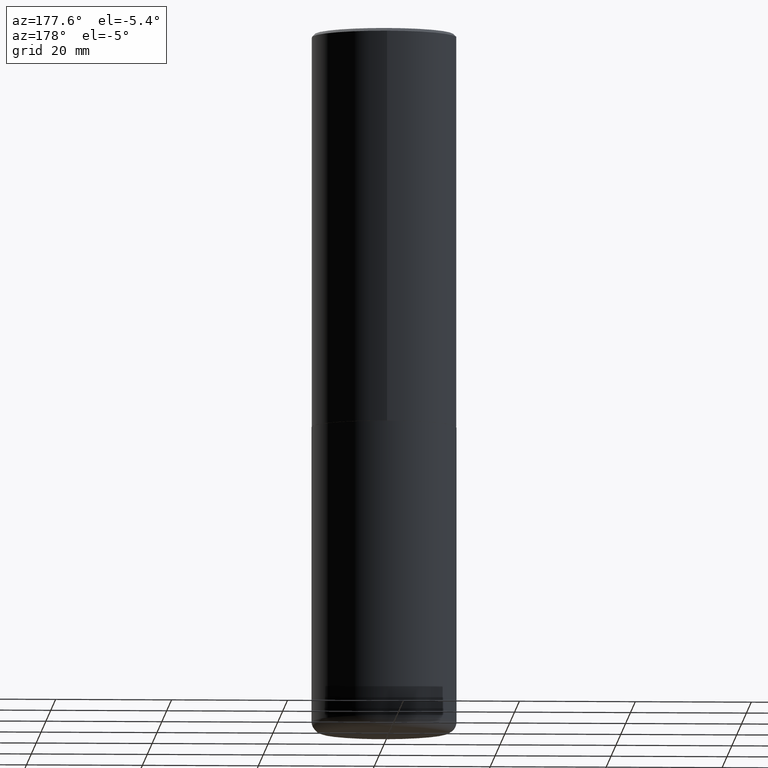
[diagram: clean part render]
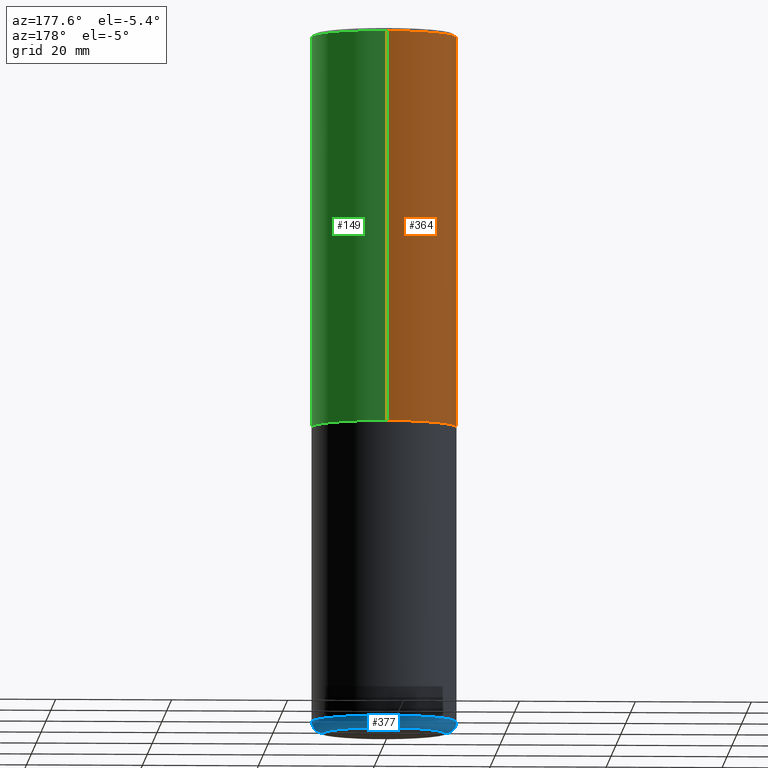
[diagram: same view with three faces highlighted in distinct colors, each labeled with its STEP entity id]
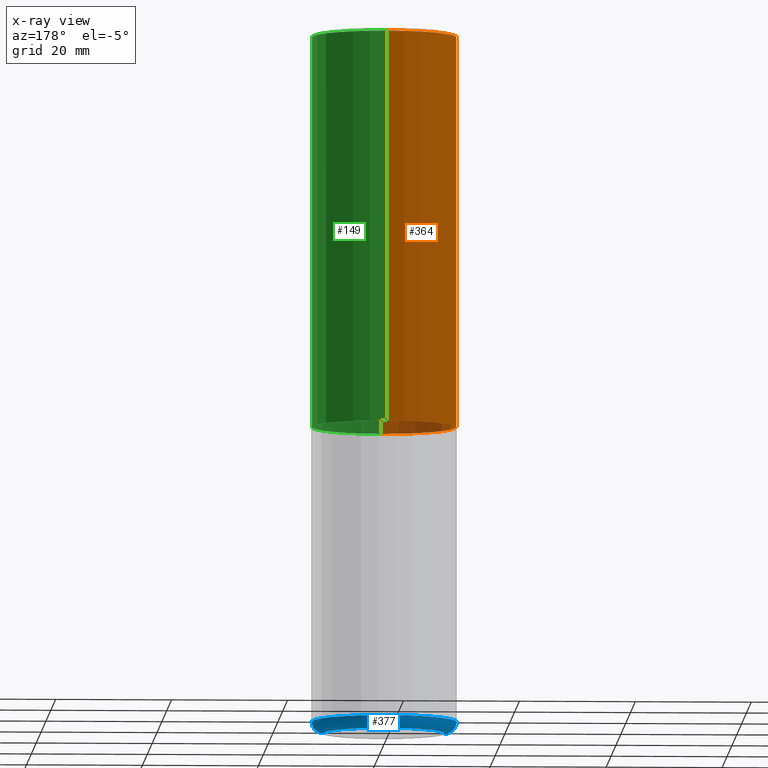
[diagram: x-ray of the same camera — body ghosted, the three highlighted faces saturated]
A machine part, auxiliary view with three faces highlighted in distinct colors.
The next image is the same camera in x-ray (body ghosted, the three faces saturated) — at least one of them is partly hidden behind the body in this view.
Their STEP definitions:

[orange] entity #364 — the highlighted cylindrical surface (partial cylindrical patch) has radius 12.5006 mm, axis along (-0, 0, 1).
#25 = DIRECTION ( 'NONE',  ( -2.447117958567619178E-29, 3.489119658767506053E-15, 1.000000000000000000 ) ) ;
#26 = DIRECTION ( 'NONE',  ( -2.447117958567619178E-29, 3.489119658767506053E-15, 1.000000000000000000 ) ) ;
#30 = CARTESIAN_POINT ( 'NONE',  ( 6.548977080718662055E-29, -9.337582030793598206E-15, -2.676199999999999690 ) ) ;
#33 = EDGE_CURVE ( 'NONE', #38, #322, #199, .T. ) ;
#38 = VERTEX_POINT ( 'NONE', #400 ) ;
#48 = ORIENTED_EDGE ( 'NONE', *, *, #285, .T. ) ;
#52 = CARTESIAN_POINT ( 'NONE',  ( -3.436665081823232273E-15, -0.4921500000000095798, -2.676199999999997914 ) ) ;
#57 = VECTOR ( 'NONE', #25, 39.37007874015748143 ) ;
#60 = EDGE_CURVE ( 'NONE', #173, #322, #270, .T. ) ;
#65 = LINE ( 'NONE', #412, #92 ) ;
#92 = VECTOR ( 'NONE', #99, 39.37007874015748143 ) ;
#99 = DIRECTION ( 'NONE',  ( -2.447117958567619178E-29, 3.489119658767506053E-15, 1.000000000000000000 ) ) ;
#145 = CARTESIAN_POINT ( 'NONE',  ( 4.894235917135264524E-31, -6.978239317535049922E-17, -0.02000000000000010797 ) ) ;
#151 = AXIS2_PLACEMENT_3D ( 'NONE', #145, #311, #341 ) ;
#159 = FACE_OUTER_BOUND ( 'NONE', #172, .T. ) ;
#172 = EDGE_LOOP ( 'NONE', ( #235, #48, #195, #386 ) ) ;
#173 = VERTEX_POINT ( 'NONE', #52 ) ;
#189 = CARTESIAN_POINT ( 'NONE',  ( 3.496936074043367212E-15, 0.4921499999999909281, -2.676200000000001467 ) ) ;
#195 = ORIENTED_EDGE ( 'NONE', *, *, #60, .T. ) ;
#199 = CIRCLE ( 'NONE', #151, 0.4921499999999999209 ) ;
#220 = CARTESIAN_POINT ( 'NONE',  ( -3.376394089603257868E-15, -0.4921499999999999764, -0.01999999999999839059 ) ) ;
#224 = DIRECTION ( 'NONE',  ( -2.447117958567619178E-29, 3.489119658767506053E-15, 1.000000000000000000 ) ) ;
#235 = ORIENTED_EDGE ( 'NONE', *, *, #288, .F. ) ;
#257 = CARTESIAN_POINT ( 'NONE',  ( 0.000000000000000000, 0.000000000000000000, 0.000000000000000000 ) ) ;
#270 = LINE ( 'NONE', #398, #57 ) ;
#281 = DIRECTION ( 'NONE',  ( -6.982962677686266711E-15, -1.000000000000000000, 3.330506545156064285E-15 ) ) ;
#285 = EDGE_CURVE ( 'NONE', #352, #173, #387, .T. ) ;
#288 = EDGE_CURVE ( 'NONE', #352, #38, #65, .T. ) ;
#311 = DIRECTION ( 'NONE',  ( -2.447117958567619178E-29, 3.489119658767506053E-15, 1.000000000000000000 ) ) ;
#322 = VERTEX_POINT ( 'NONE', #220 ) ;
#341 = DIRECTION ( 'NONE',  ( -6.982962677686265922E-15, -1.000000000000000000, 3.486624039460257331E-15 ) ) ;
#348 = DIRECTION ( 'NONE',  ( -6.982962677686265922E-15, -1.000000000000000000, 3.489119658767506053E-15 ) ) ;
#352 = VERTEX_POINT ( 'NONE', #189 ) ;
#360 = AXIS2_PLACEMENT_3D ( 'NONE', #257, #224, #348 ) ;
#364 = ADVANCED_FACE ( 'NONE', ( #159 ), #416, .T. ) ;
#386 = ORIENTED_EDGE ( 'NONE', *, *, #33, .F. ) ;
#387 = CIRCLE ( 'NONE', #410, 0.4921500000000002539 ) ;
#398 = CARTESIAN_POINT ( 'NONE',  ( -3.436665081823296565E-15, -0.4921500000000000874, 1.717170240062428491E-15 ) ) ;
#400 = CARTESIAN_POINT ( 'NONE',  ( 3.436665081823295777E-15, 0.4921499999999998098, -0.02000000000000182188 ) ) ;
#410 = AXIS2_PLACEMENT_3D ( 'NONE', #30, #26, #281 ) ;
#412 = CARTESIAN_POINT ( 'NONE',  ( 3.496936074043333291E-15, 0.4921500000000000874, -1.717170240062428491E-15 ) ) ;
#416 = CYLINDRICAL_SURFACE ( 'NONE', #360, 0.4921500000000000874 ) ;

[blue] entity #377 — the highlighted toroidal blend (fillet) surface has major radius 10.5016 mm and minor (blend) radius 1.999 mm.
#1 = DIRECTION ( 'NONE',  ( 1.000000000000000000, -6.982962677686263555E-15, 4.883557194083111219E-29 ) ) ;
#18 = DIRECTION ( 'NONE',  ( 1.000000000000000000, -6.982962677686265922E-15, 0.000000000000000000 ) ) ;
#20 = EDGE_CURVE ( 'NONE', #324, #267, #77, .T. ) ;
#24 = AXIS2_PLACEMENT_3D ( 'NONE', #128, #163, #1 ) ;
#31 = DIRECTION ( 'NONE',  ( -6.982962677686266711E-15, -1.000000000000000000, 3.491481338843145583E-15 ) ) ;
#58 = CARTESIAN_POINT ( 'NONE',  ( 1.164972429890475522E-28, -1.663271880198097847E-14, -4.763799999999999812 ) ) ;
#62 = DIRECTION ( 'NONE',  ( -1.000000000000000000, 7.105427357600995548E-15, 0.000000000000000000 ) ) ;
#63 = AXIS2_PLACEMENT_3D ( 'NONE', #58, #363, #125 ) ;
#67 = CARTESIAN_POINT ( 'NONE',  ( -0.4921500000000000874, -1.286100314657068829E-14, -4.685099999999999376 ) ) ;
#73 = ORIENTED_EDGE ( 'NONE', *, *, #20, .F. ) ;
#75 = ORIENTED_EDGE ( 'NONE', *, *, #211, .T. ) ;
#77 = CIRCLE ( 'NONE', #182, 0.4921499999999999764 ) ;
#113 = AXIS2_PLACEMENT_3D ( 'NONE', #316, #31, #157 ) ;
#122 = DIRECTION ( 'NONE',  ( 7.105427357601001859E-15, 1.000000000000000000, -3.491481338843145583E-15 ) ) ;
#125 = DIRECTION ( 'NONE',  ( 1.000000000000000000, -6.982962677686261977E-15, 0.000000000000000000 ) ) ;
#128 = CARTESIAN_POINT ( 'NONE',  ( 1.145726590385798145E-28, -1.635793922061402197E-14, -4.685099999999999376 ) ) ;
#157 = DIRECTION ( 'NONE',  ( 1.000000000000000000, -6.982962677686273810E-15, 0.000000000000000000 ) ) ;
#163 = DIRECTION ( 'NONE',  ( -2.445468806185136597E-29, 3.491481338843145583E-15, 1.000000000000000000 ) ) ;
#171 = ORIENTED_EDGE ( 'NONE', *, *, #219, .T. ) ;
#182 = AXIS2_PLACEMENT_3D ( 'NONE', #306, #205, #18 ) ;
#188 = CARTESIAN_POINT ( 'NONE',  ( -0.4134499999999999287, -1.327799150377576435E-14, -4.763799999999999812 ) ) ;
#205 = DIRECTION ( 'NONE',  ( -2.445468806185136597E-29, 3.491481338843145583E-15, 1.000000000000000000 ) ) ;
#211 = EDGE_CURVE ( 'NONE', #320, #326, #351, .T. ) ;
#219 = EDGE_CURVE ( 'NONE', #326, #267, #339, .T. ) ;
#265 = FACE_OUTER_BOUND ( 'NONE', #350, .T. ) ;
#267 = VERTEX_POINT ( 'NONE', #67 ) ;
#269 = TOROIDAL_SURFACE ( 'NONE', #24, 0.4134499999999999287, 0.07870000000000024198 ) ;
#294 = ORIENTED_EDGE ( 'NONE', *, *, #328, .F. ) ;
#306 = CARTESIAN_POINT ( 'NONE',  ( 1.145726590385798145E-28, -1.635793922061402197E-14, -4.685099999999999376 ) ) ;
#316 = CARTESIAN_POINT ( 'NONE',  ( 0.4134499999999999287, -1.924504513970340634E-14, -4.685099999999999376 ) ) ;
#318 = AXIS2_PLACEMENT_3D ( 'NONE', #373, #122, #62 ) ;
#320 = VERTEX_POINT ( 'NONE', #414 ) ;
#324 = VERTEX_POINT ( 'NONE', #343 ) ;
#326 = VERTEX_POINT ( 'NONE', #188 ) ;
#328 = EDGE_CURVE ( 'NONE', #320, #324, #411, .T. ) ;
#339 = CIRCLE ( 'NONE', #318, 0.07870000000000024198 ) ;
#343 = CARTESIAN_POINT ( 'NONE',  ( 0.4921500000000000874, -1.979460430243731302E-14, -4.685099999999999376 ) ) ;
#350 = EDGE_LOOP ( 'NONE', ( #75, #171, #73, #294 ) ) ;
#351 = CIRCLE ( 'NONE', #63, 0.4134499999999999287 ) ;
#363 = DIRECTION ( 'NONE',  ( -2.445468806185136597E-29, 3.491481338843145583E-15, 1.000000000000000000 ) ) ;
#373 = CARTESIAN_POINT ( 'NONE',  ( -0.4134499999999999287, -1.342020027961388708E-14, -4.685099999999999376 ) ) ;
#377 = ADVANCED_FACE ( 'NONE', ( #265 ), #269, .T. ) ;
#411 = CIRCLE ( 'NONE', #113, 0.07870000000000024198 ) ;
#414 = CARTESIAN_POINT ( 'NONE',  ( 0.4134499999999999287, -1.951982472107036283E-14, -4.763799999999999812 ) ) ;

[green] entity #149 — the highlighted cylindrical surface (partial cylindrical patch) has radius 12.5006 mm, axis along (-0, 0, 1).
#3 = ORIENTED_EDGE ( 'NONE', *, *, #375, .F. ) ;
#5 = CIRCLE ( 'NONE', #245, 0.4921499999999999209 ) ;
#25 = DIRECTION ( 'NONE',  ( -2.447117958567619178E-29, 3.489119658767506053E-15, 1.000000000000000000 ) ) ;
#29 = AXIS2_PLACEMENT_3D ( 'NONE', #124, #98, #253 ) ;
#38 = VERTEX_POINT ( 'NONE', #400 ) ;
#52 = CARTESIAN_POINT ( 'NONE',  ( -3.436665081823232273E-15, -0.4921500000000095798, -2.676199999999997914 ) ) ;
#57 = VECTOR ( 'NONE', #25, 39.37007874015748143 ) ;
#60 = EDGE_CURVE ( 'NONE', #173, #322, #270, .T. ) ;
#65 = LINE ( 'NONE', #412, #92 ) ;
#89 = CYLINDRICAL_SURFACE ( 'NONE', #191, 0.4921500000000000874 ) ;
#92 = VECTOR ( 'NONE', #99, 39.37007874015748143 ) ;
#98 = DIRECTION ( 'NONE',  ( -2.447117958567619178E-29, 3.489119658767506053E-15, 1.000000000000000000 ) ) ;
#99 = DIRECTION ( 'NONE',  ( -2.447117958567619178E-29, 3.489119658767506053E-15, 1.000000000000000000 ) ) ;
#124 = CARTESIAN_POINT ( 'NONE',  ( 6.548977080718662055E-29, -9.337582030793598206E-15, -2.676199999999999690 ) ) ;
#149 = ADVANCED_FACE ( 'NONE', ( #278 ), #89, .T. ) ;
#173 = VERTEX_POINT ( 'NONE', #52 ) ;
#189 = CARTESIAN_POINT ( 'NONE',  ( 3.496936074043367212E-15, 0.4921499999999909281, -2.676200000000001467 ) ) ;
#191 = AXIS2_PLACEMENT_3D ( 'NONE', #248, #365, #402 ) ;
#206 = CIRCLE ( 'NONE', #29, 0.4921500000000002539 ) ;
#220 = CARTESIAN_POINT ( 'NONE',  ( -3.376394089603257868E-15, -0.4921499999999999764, -0.01999999999999839059 ) ) ;
#225 = DIRECTION ( 'NONE',  ( -6.982962677686265922E-15, -1.000000000000000000, 3.486624039460257331E-15 ) ) ;
#232 = ORIENTED_EDGE ( 'NONE', *, *, #60, .F. ) ;
#234 = CARTESIAN_POINT ( 'NONE',  ( 4.894235917135264524E-31, -6.978239317535049922E-17, -0.02000000000000010797 ) ) ;
#245 = AXIS2_PLACEMENT_3D ( 'NONE', #234, #258, #225 ) ;
#248 = CARTESIAN_POINT ( 'NONE',  ( 0.000000000000000000, 0.000000000000000000, 0.000000000000000000 ) ) ;
#253 = DIRECTION ( 'NONE',  ( -6.982962677686266711E-15, -1.000000000000000000, 3.330506545156064285E-15 ) ) ;
#258 = DIRECTION ( 'NONE',  ( -2.447117958567619178E-29, 3.489119658767506053E-15, 1.000000000000000000 ) ) ;
#264 = EDGE_LOOP ( 'NONE', ( #362, #393, #3, #232 ) ) ;
#270 = LINE ( 'NONE', #398, #57 ) ;
#278 = FACE_OUTER_BOUND ( 'NONE', #264, .T. ) ;
#288 = EDGE_CURVE ( 'NONE', #352, #38, #65, .T. ) ;
#296 = EDGE_CURVE ( 'NONE', #173, #352, #206, .T. ) ;
#322 = VERTEX_POINT ( 'NONE', #220 ) ;
#352 = VERTEX_POINT ( 'NONE', #189 ) ;
#362 = ORIENTED_EDGE ( 'NONE', *, *, #296, .T. ) ;
#365 = DIRECTION ( 'NONE',  ( -2.447117958567619178E-29, 3.489119658767506053E-15, 1.000000000000000000 ) ) ;
#375 = EDGE_CURVE ( 'NONE', #322, #38, #5, .T. ) ;
#393 = ORIENTED_EDGE ( 'NONE', *, *, #288, .T. ) ;
#398 = CARTESIAN_POINT ( 'NONE',  ( -3.436665081823296565E-15, -0.4921500000000000874, 1.717170240062428491E-15 ) ) ;
#400 = CARTESIAN_POINT ( 'NONE',  ( 3.436665081823295777E-15, 0.4921499999999998098, -0.02000000000000182188 ) ) ;
#402 = DIRECTION ( 'NONE',  ( -6.982962677686265922E-15, -1.000000000000000000, 3.489119658767506053E-15 ) ) ;
#412 = CARTESIAN_POINT ( 'NONE',  ( 3.496936074043333291E-15, 0.4921500000000000874, -1.717170240062428491E-15 ) ) ;